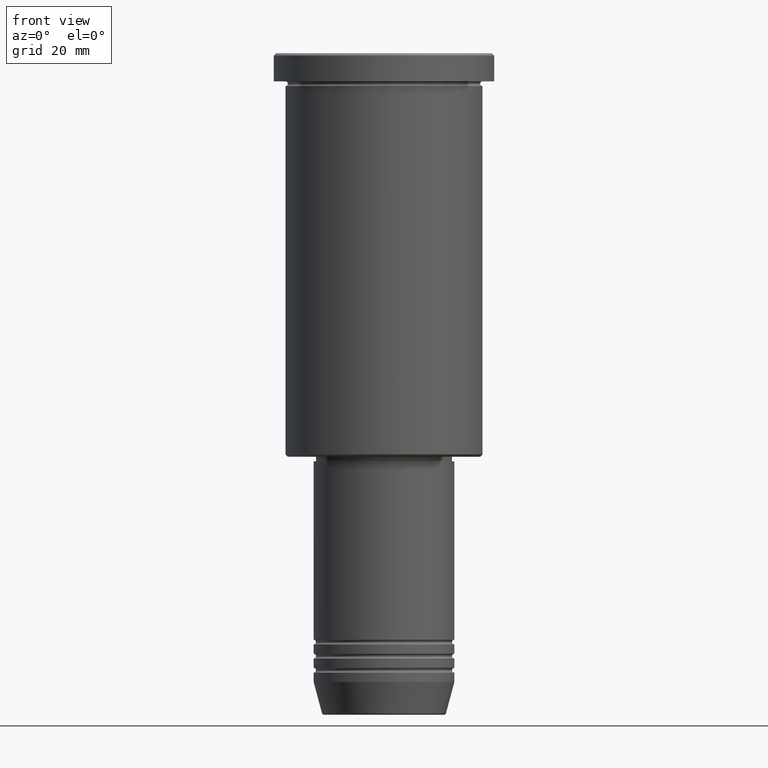
[diagram: clean part render]
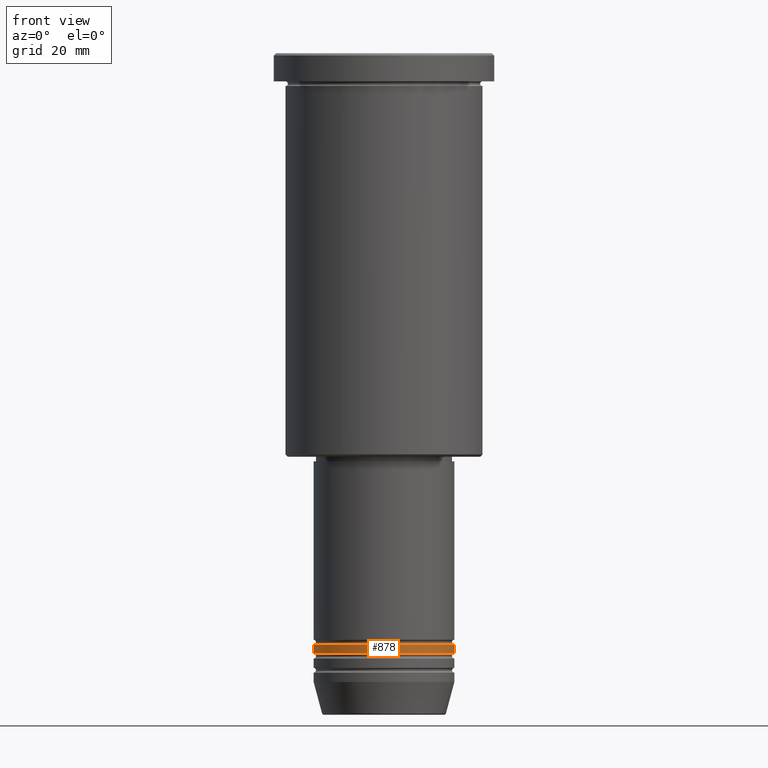
[diagram: same view with one face highlighted and labeled with its STEP entity id]
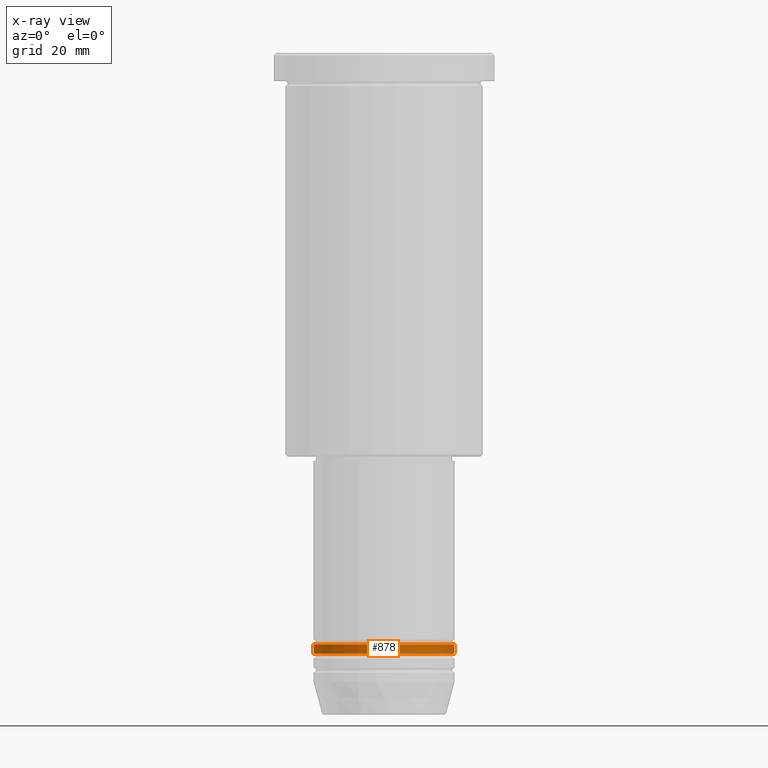
[diagram: x-ray of the same camera — body ghosted, the highlighted face saturated]
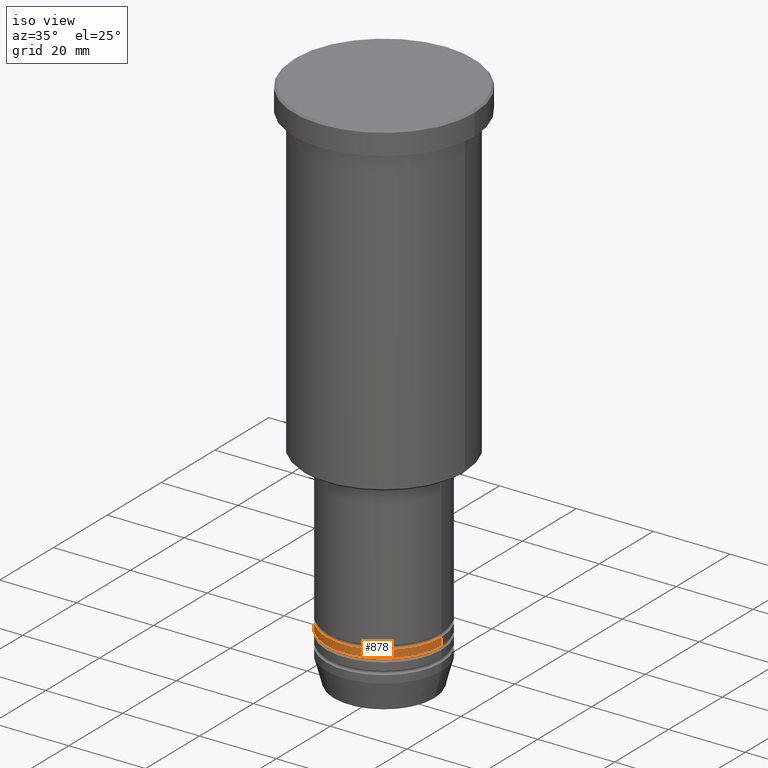
[diagram: same view with one face highlighted and labeled with its STEP entity id]
A machine part, front view. The second image highlights one B-rep face of the part: STEP entity #878.
The next image is the same camera in x-ray: the body ghosted, the highlighted face saturated — about 0% of this face is hidden behind the body in this view.
A second angle (iso view) of the same face is appended — the face is thin or edge-on in the first view.
In plain terms, the highlighted cylindrical surface (partial cylindrical patch) has radius 15 mm, axis along (-0, -0, 1).
Its self-contained STEP definition (entity closure, byte-faithful):
#21 = CARTESIAN_POINT ( 'NONE',  ( 0.000000000000000000, 0.000000000000000000, -125.9999999999999716 ) ) ;
#33 = EDGE_CURVE ( 'NONE', #416, #313, #429, .T. ) ;
#40 = CIRCLE ( 'NONE', #704, 15.00000000000000000 ) ;
#93 = CYLINDRICAL_SURFACE ( 'NONE', #1008, 15.00000000000000000 ) ;
#112 = DIRECTION ( 'NONE',  ( -0.000000000000000000, -0.000000000000000000, 1.000000000000000000 ) ) ;
#132 = DIRECTION ( 'NONE',  ( 1.000000000000000000, 0.000000000000000000, 0.000000000000000000 ) ) ;
#184 = VERTEX_POINT ( 'NONE', #422 ) ;
#202 = DIRECTION ( 'NONE',  ( -0.000000000000000000, -0.000000000000000000, 1.000000000000000000 ) ) ;
#220 = EDGE_CURVE ( 'NONE', #184, #416, #559, .T. ) ;
#236 = ORIENTED_EDGE ( 'NONE', *, *, #220, .T. ) ;
#237 = CARTESIAN_POINT ( 'NONE',  ( 0.000000000000000000, 0.000000000000000000, -127.9999999999999716 ) ) ;
#313 = VERTEX_POINT ( 'NONE', #511 ) ;
#362 = CARTESIAN_POINT ( 'NONE',  ( 0.000000000000000000, 0.000000000000000000, 0.000000000000000000 ) ) ;
#416 = VERTEX_POINT ( 'NONE', #749 ) ;
#422 = CARTESIAN_POINT ( 'NONE',  ( -15.00000000000000000, 1.836970198721029589E-15, -127.9999999999999716 ) ) ;
#429 = LINE ( 'NONE', #792, #1057 ) ;
#467 = DIRECTION ( 'NONE',  ( 1.000000000000000000, 0.000000000000000000, 0.000000000000000000 ) ) ;
#511 = CARTESIAN_POINT ( 'NONE',  ( 15.00000000000000000, 0.000000000000000000, -125.9999999999999716 ) ) ;
#518 = ORIENTED_EDGE ( 'NONE', *, *, #33, .T. ) ;
#559 = CIRCLE ( 'NONE', #1129, 15.00000000000000000 ) ;
#614 = VERTEX_POINT ( 'NONE', #1001 ) ;
#620 = CARTESIAN_POINT ( 'NONE',  ( -15.00000000000000000, 1.836970198721029589E-15, 0.000000000000000000 ) ) ;
#647 = DIRECTION ( 'NONE',  ( -0.000000000000000000, -0.000000000000000000, 1.000000000000000000 ) ) ;
#704 = AXIS2_PLACEMENT_3D ( 'NONE', #21, #112, #467 ) ;
#712 = ORIENTED_EDGE ( 'NONE', *, *, #854, .F. ) ;
#749 = CARTESIAN_POINT ( 'NONE',  ( 15.00000000000000000, 0.000000000000000000, -127.9999999999999716 ) ) ;
#753 = DIRECTION ( 'NONE',  ( -0.000000000000000000, -0.000000000000000000, 1.000000000000000000 ) ) ;
#792 = CARTESIAN_POINT ( 'NONE',  ( 15.00000000000000000, 0.000000000000000000, 0.000000000000000000 ) ) ;
#854 = EDGE_CURVE ( 'NONE', #614, #313, #40, .T. ) ;
#871 = VECTOR ( 'NONE', #202, 1000.000000000000000 ) ;
#878 = ADVANCED_FACE ( 'NONE', ( #1085 ), #93, .T. ) ;
#901 = DIRECTION ( 'NONE',  ( -0.000000000000000000, -0.000000000000000000, 1.000000000000000000 ) ) ;
#989 = EDGE_CURVE ( 'NONE', #184, #614, #1083, .T. ) ;
#1001 = CARTESIAN_POINT ( 'NONE',  ( -15.00000000000000000, 1.836970198721029589E-15, -125.9999999999999716 ) ) ;
#1008 = AXIS2_PLACEMENT_3D ( 'NONE', #362, #901, #132 ) ;
#1032 = DIRECTION ( 'NONE',  ( 1.000000000000000000, 0.000000000000000000, 0.000000000000000000 ) ) ;
#1057 = VECTOR ( 'NONE', #647, 1000.000000000000000 ) ;
#1069 = EDGE_LOOP ( 'NONE', ( #1152, #236, #518, #712 ) ) ;
#1083 = LINE ( 'NONE', #620, #871 ) ;
#1085 = FACE_OUTER_BOUND ( 'NONE', #1069, .T. ) ;
#1129 = AXIS2_PLACEMENT_3D ( 'NONE', #237, #753, #1032 ) ;
#1152 = ORIENTED_EDGE ( 'NONE', *, *, #989, .F. ) ;